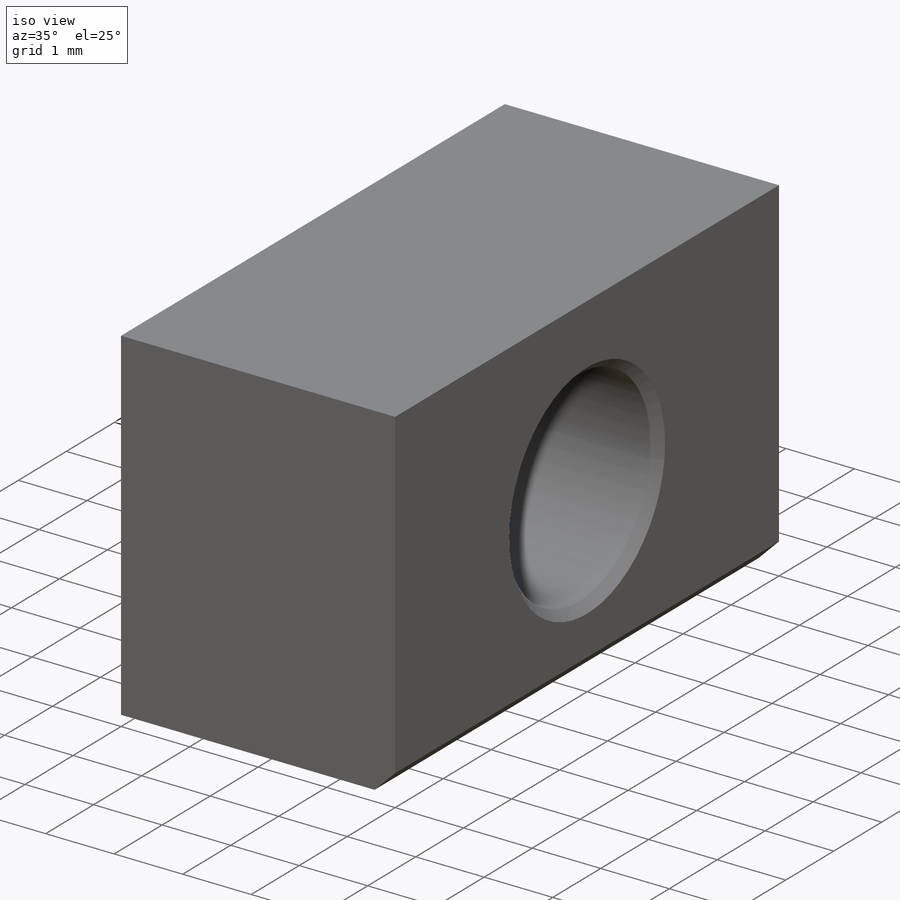
[diagram: iso view]
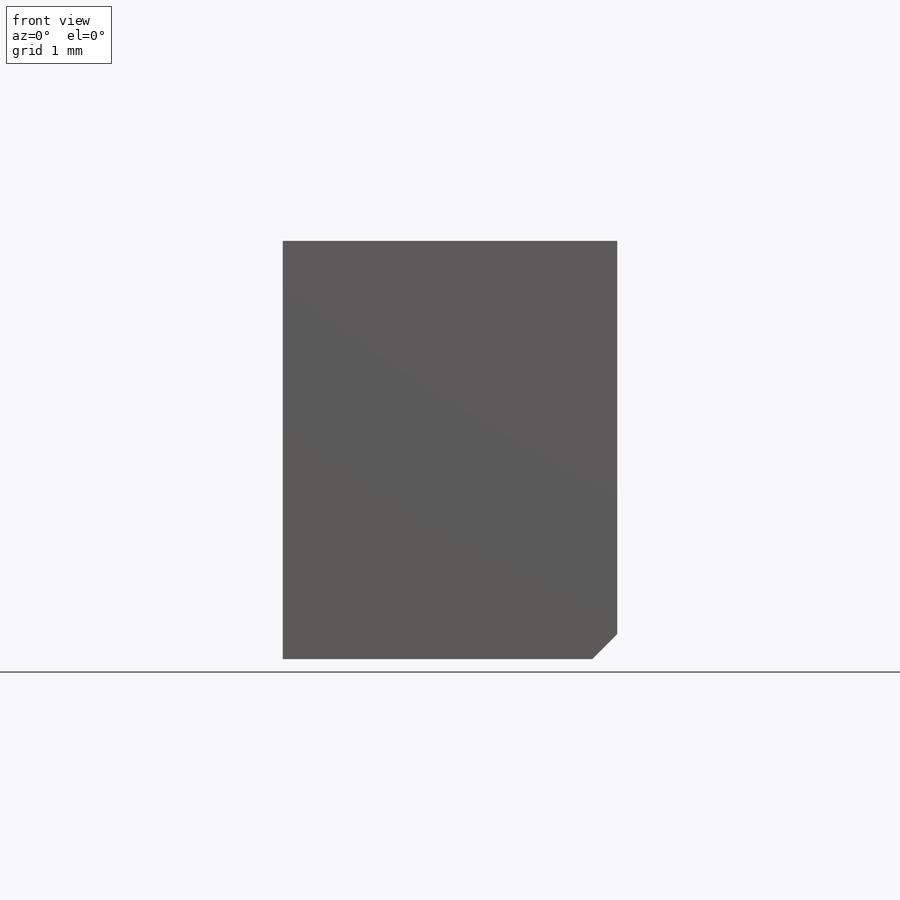
[diagram: front view]
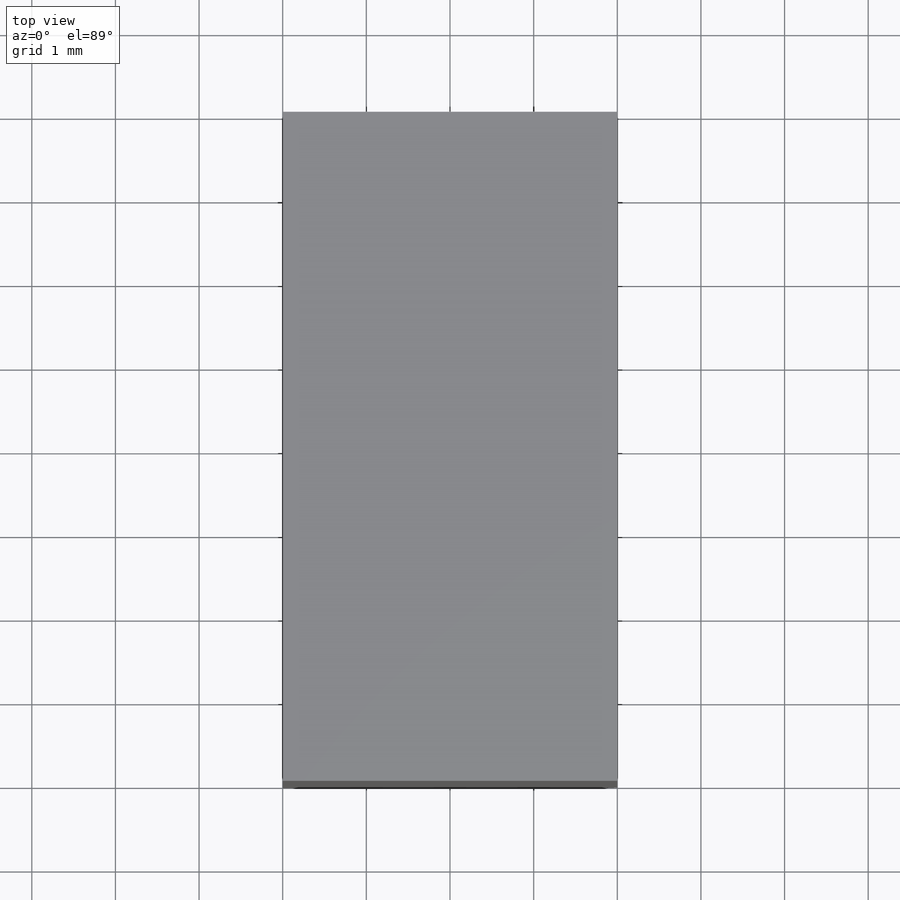
[diagram: top view]
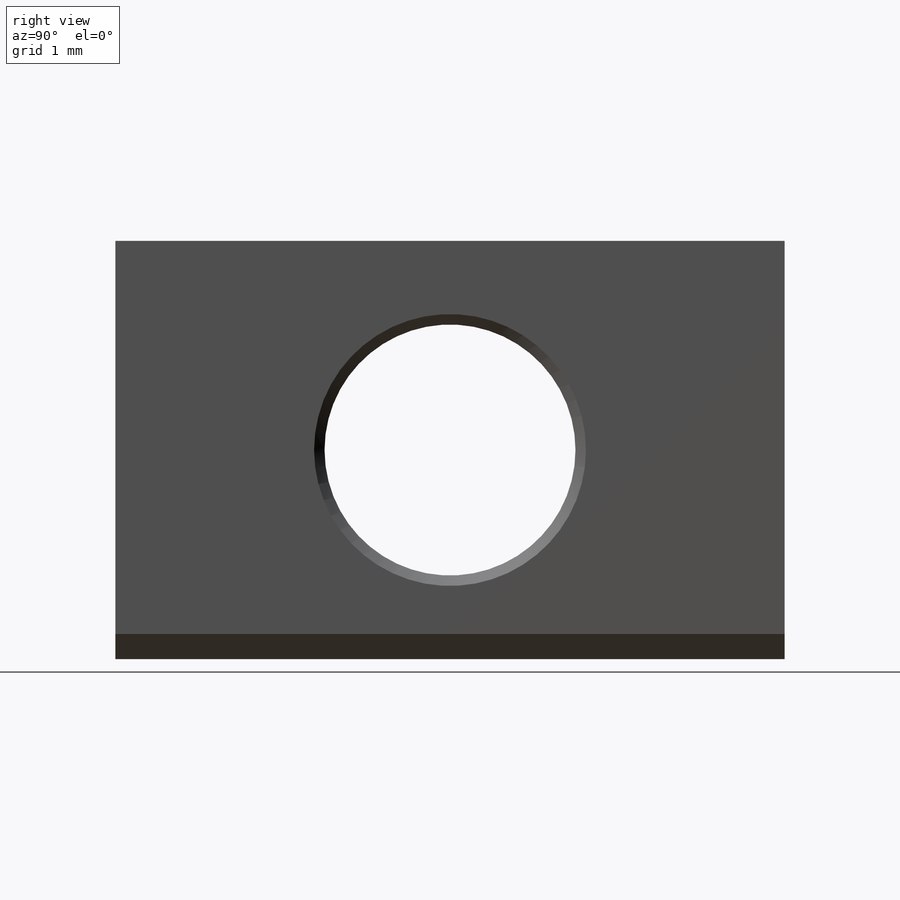
[diagram: right view]
SOLIDWORKS PART (.sldprt)
format: sldprt  version: not decoded by parser v0  size: 201,728 bytes
history: native  units: mm
features: sketch x3, material x1, extrude x1, hole x1, chamfer x1 (+14 scaffold rows collapsed)
feature tree (21):
  scaffold x14  (default folders/planes/origin — collapsed)
  material  "Простая углеродистая сталь"
  sketch  "Эскиз1"  dims[D1=4.0mm D2=5.0mm D3=0.5mm D4=45.0deg D5=0.5mm D6=45.0deg D7=0.5mm D8=45.0deg D9=0.5mm D10=45.0deg]
  extrude  "Бобышка-Вытянуть1"  Depth=8mm
  hole  "Отверстие обработанное метчиком M31"  [1 undecoded]
  sketch  "Эскиз3"  dims[D1=4.0mm]
  sketch  "Эскиз2"  dims[hole-wizard template sketch: 47 standard entries collapsed; hole parameters kept: c15.Глубина проходного сверла=4.0mm c15.Диаметр передней зенковки=3.25mm c15.D4=~3.666174mm c15.Угол передней зенковки=90.0deg c15.Диаметр задней зенковки=3.25mm c15.D6=~9.919017mm c15.Угол задней зенковки=90.0deg]
  chamfer  "Фаска1"  Distance=0.3mm Angle=45deg
decode coverage: 5 of 6 modeling features carry decoded parameters
note: ~ marks probable driven/reference dimensions
note: 1 parameter value undecoded
note: suppression state not decoded; provenance and decode notes live in map.json
